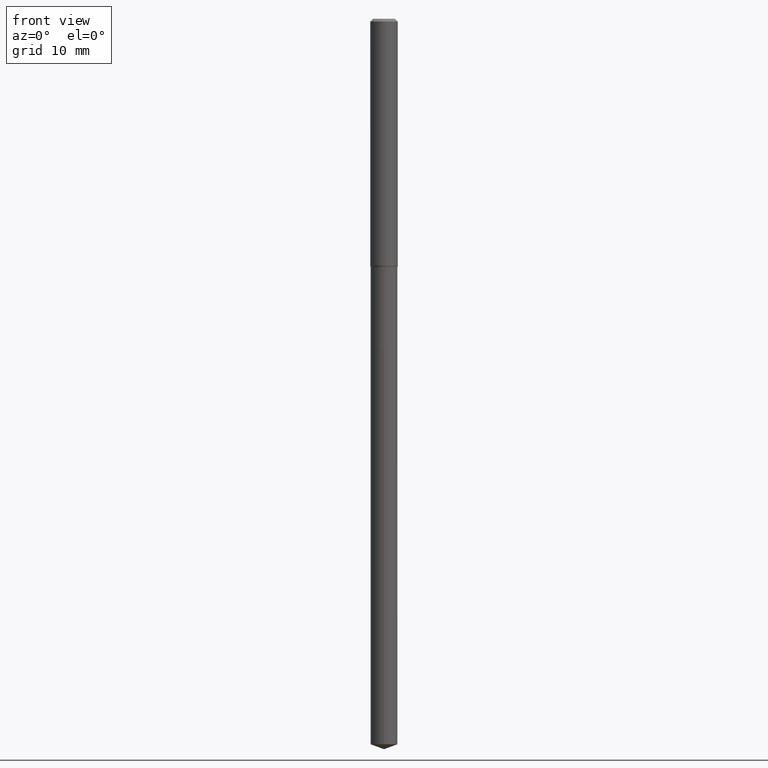
[diagram: clean part render]
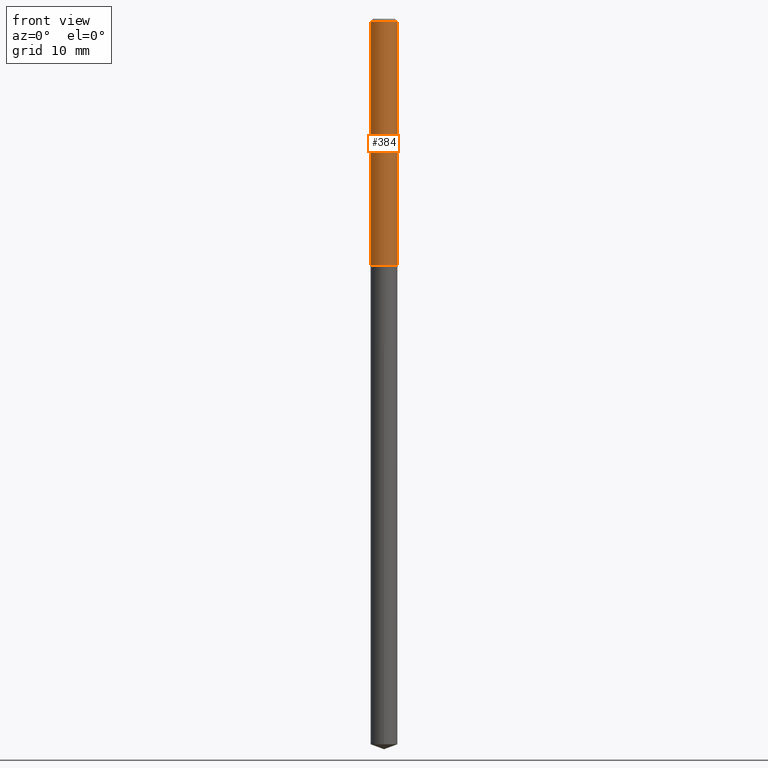
[diagram: same view with one face highlighted and labeled with its STEP entity id]
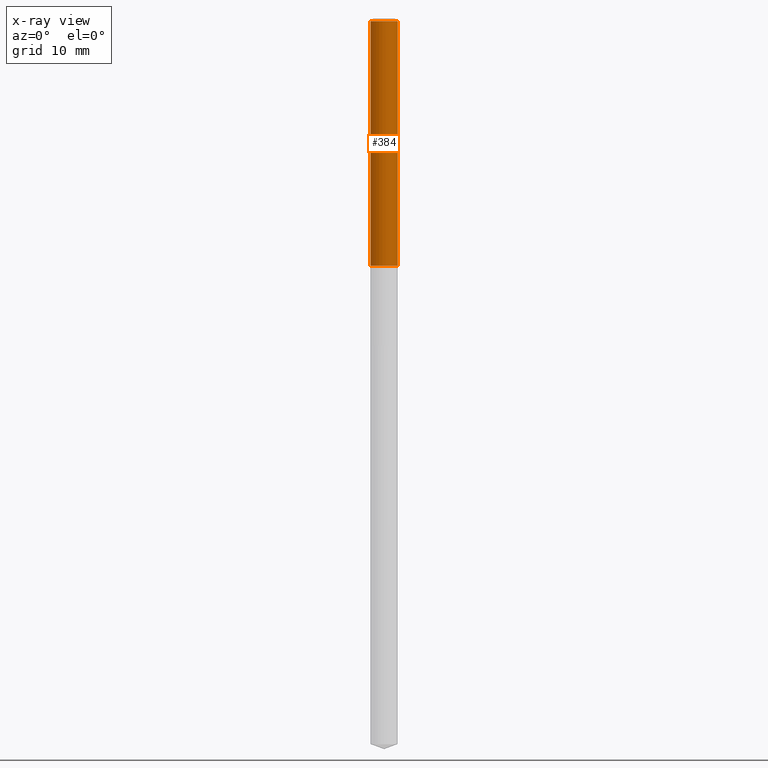
[diagram: x-ray of the same camera — body ghosted, the highlighted face saturated]
A machine part, front view. The second image highlights one B-rep face of the part: STEP entity #384.
The next image is the same camera in x-ray: the body ghosted, the highlighted face saturated — about 0% of this face is hidden behind the body in this view.
In plain terms, the highlighted cylindrical surface (edge-blend (fillet) strip) has radius 2.0003 mm, axis along (-0, 0, 1).
Its self-contained STEP definition (entity closure, byte-faithful):
#2 = EDGE_LOOP ( 'NONE', ( #213, #395, #437, #322 ) ) ;
#7 = DIRECTION ( 'NONE',  ( 1.000000000000000000, -6.982962677686267499E-15, 4.876176775795935232E-29 ) ) ;
#22 = AXIS2_PLACEMENT_3D ( 'NONE', #348, #345, #7 ) ;
#29 = DIRECTION ( 'NONE',  ( 1.000000000000000000, -6.982962677686265922E-15, 0.000000000000000000 ) ) ;
#64 = DIRECTION ( 'NONE',  ( 1.000000000000000000, -6.982962677686271444E-15, 0.000000000000000000 ) ) ;
#67 = CARTESIAN_POINT ( 'NONE',  ( -0.07875000000000016709, -4.364958214434130508E-15, -1.410435898384861053 ) ) ;
#115 = FACE_OUTER_BOUND ( 'NONE', #2, .T. ) ;
#119 = AXIS2_PLACEMENT_3D ( 'NONE', #490, #151, #29 ) ;
#122 = VERTEX_POINT ( 'NONE', #335 ) ;
#151 = DIRECTION ( 'NONE',  ( -2.445468806185136597E-29, 3.491481338843145583E-15, 1.000000000000000000 ) ) ;
#156 = LINE ( 'NONE', #233, #458 ) ;
#184 = DIRECTION ( 'NONE',  ( -2.445468806185136597E-29, 3.491481338843145583E-15, 1.000000000000000000 ) ) ;
#188 = CIRCLE ( 'NONE', #406, 0.07875000000000016709 ) ;
#196 = VERTEX_POINT ( 'NONE', #67 ) ;
#203 = CYLINDRICAL_SURFACE ( 'NONE', #22, 0.07875000000000008382 ) ;
#213 = ORIENTED_EDGE ( 'NONE', *, *, #309, .F. ) ;
#216 = CARTESIAN_POINT ( 'NONE',  ( -0.07875000000000000056, -1.930198320554914337E-15, -0.01575000000000009726 ) ) ;
#233 = CARTESIAN_POINT ( 'NONE',  ( 0.07875000000000008382, -5.499083108677941345E-16, 3.839989210939303220E-30 ) ) ;
#238 = LINE ( 'NONE', #426, #392 ) ;
#256 = EDGE_CURVE ( 'NONE', #279, #358, #339, .T. ) ;
#271 = EDGE_CURVE ( 'NONE', #196, #122, #188, .T. ) ;
#275 = DIRECTION ( 'NONE',  ( -2.445468806185136877E-29, 3.491481338843145188E-15, 1.000000000000000000 ) ) ;
#279 = VERTEX_POINT ( 'NONE', #216 ) ;
#309 = EDGE_CURVE ( 'NONE', #196, #279, #238, .T. ) ;
#322 = ORIENTED_EDGE ( 'NONE', *, *, #256, .F. ) ;
#335 = CARTESIAN_POINT ( 'NONE',  ( 0.07875000000000016709, -5.474418929713005022E-15, -1.410435898384861053 ) ) ;
#339 = CIRCLE ( 'NONE', #119, 0.07875000000000000056 ) ;
#345 = DIRECTION ( 'NONE',  ( -2.445468806185136597E-29, 3.491481338843145583E-15, 1.000000000000000000 ) ) ;
#348 = CARTESIAN_POINT ( 'NONE',  ( 0.000000000000000000, 0.000000000000000000, 0.000000000000000000 ) ) ;
#350 = EDGE_CURVE ( 'NONE', #122, #358, #156, .T. ) ;
#358 = VERTEX_POINT ( 'NONE', #420 ) ;
#384 = ADVANCED_FACE ( 'NONE', ( #115 ), #203, .T. ) ;
#392 = VECTOR ( 'NONE', #455, 39.37007874015748143 ) ;
#395 = ORIENTED_EDGE ( 'NONE', *, *, #271, .T. ) ;
#401 = CARTESIAN_POINT ( 'NONE',  ( 3.449176992623886773E-29, -4.924510618845209310E-15, -1.410435898384861053 ) ) ;
#406 = AXIS2_PLACEMENT_3D ( 'NONE', #401, #184, #64 ) ;
#420 = CARTESIAN_POINT ( 'NONE',  ( 0.07875000000000000056, -6.048991419545733705E-16, -0.01575000000000009726 ) ) ;
#426 = CARTESIAN_POINT ( 'NONE',  ( -0.07875000000000008382, 5.595524044110794920E-16, -3.873661383575742696E-30 ) ) ;
#437 = ORIENTED_EDGE ( 'NONE', *, *, #350, .T. ) ;
#455 = DIRECTION ( 'NONE',  ( -2.445468806185136877E-29, 3.491481338843145188E-15, 1.000000000000000000 ) ) ;
#458 = VECTOR ( 'NONE', #275, 39.37007874015748143 ) ;
#490 = CARTESIAN_POINT ( 'NONE',  ( 3.851613369741613486E-31, -5.499083108677987691E-17, -0.01575000000000009726 ) ) ;